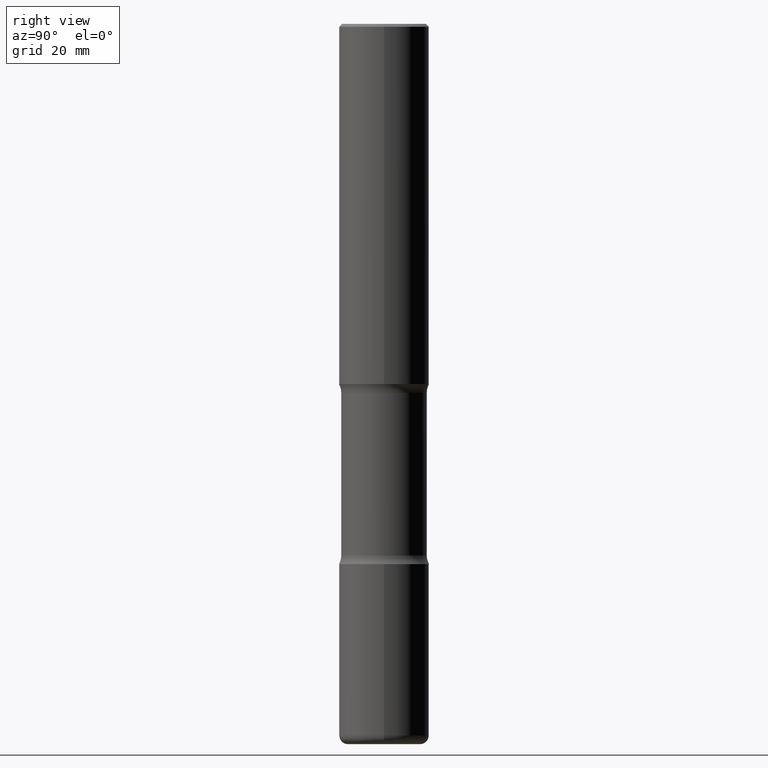
[diagram: clean part render]
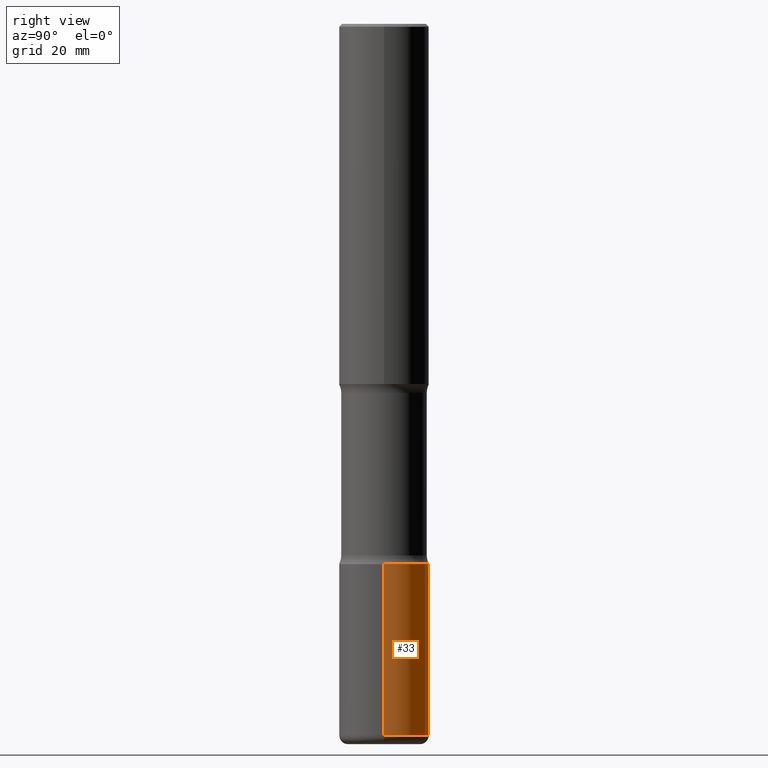
[diagram: same view with one face highlighted and labeled with its STEP entity id]
A machine part, right view. The second image highlights one B-rep face of the part: STEP entity #33.
In plain terms, the highlighted cylindrical surface (partial cylindrical patch) has radius 7.9375 mm, axis along (-0, 0, 1).
Its self-contained STEP definition (entity closure, byte-faithful):
#5 = CARTESIAN_POINT ( 'NONE',  ( 0.000000000000000000, 0.000000000000000000, 0.000000000000000000 ) ) ;
#10 = CYLINDRICAL_SURFACE ( 'NONE', #163, 0.3125000000000002220 ) ;
#17 = CARTESIAN_POINT ( 'NONE',  ( -0.3125000000000002220, 2.220446049250314659E-15, -1.537167215704659073E-29 ) ) ;
#33 = ADVANCED_FACE ( 'NONE', ( #432 ), #10, .T. ) ;
#73 = DIRECTION ( 'NONE',  ( 1.000000000000000000, -6.982962677686265133E-15, 0.000000000000000000 ) ) ;
#82 = LINE ( 'NONE', #17, #335 ) ;
#84 = DIRECTION ( 'NONE',  ( 1.000000000000000000, -6.982962677686262766E-15, 0.000000000000000000 ) ) ;
#100 = CARTESIAN_POINT ( 'NONE',  ( 0.3125000000000000000, -1.943009365066209992E-14, -4.940000000000001279 ) ) ;
#131 = ORIENTED_EDGE ( 'NONE', *, *, #405, .T. ) ;
#147 = VECTOR ( 'NONE', #327, 39.37007874015748143 ) ;
#163 = AXIS2_PLACEMENT_3D ( 'NONE', #5, #338, #292 ) ;
#167 = CARTESIAN_POINT ( 'NONE',  ( 1.208061590255457820E-28, -1.724791781388514630E-14, -4.940000000000001279 ) ) ;
#181 = DIRECTION ( 'NONE',  ( -2.445468806185136877E-29, 3.491481338843145188E-15, 1.000000000000000000 ) ) ;
#189 = LINE ( 'NONE', #406, #147 ) ;
#214 = EDGE_CURVE ( 'NONE', #323, #468, #189, .T. ) ;
#233 = EDGE_CURVE ( 'NONE', #323, #504, #321, .T. ) ;
#289 = CARTESIAN_POINT ( 'NONE',  ( 9.170508023194261117E-29, -1.309305502066179584E-14, -3.749999999999999556 ) ) ;
#292 = DIRECTION ( 'NONE',  ( 1.000000000000000000, -6.982962677686266711E-15, 4.876176775795936353E-29 ) ) ;
#319 = ORIENTED_EDGE ( 'NONE', *, *, #532, .F. ) ;
#321 = CIRCLE ( 'NONE', #397, 0.3125000000000002776 ) ;
#323 = VERTEX_POINT ( 'NONE', #100 ) ;
#327 = DIRECTION ( 'NONE',  ( -2.445468806185136877E-29, 3.491481338843145188E-15, 1.000000000000000000 ) ) ;
#335 = VECTOR ( 'NONE', #181, 39.37007874015748143 ) ;
#338 = DIRECTION ( 'NONE',  ( -2.445468806185136597E-29, 3.491481338843145583E-15, 1.000000000000000000 ) ) ;
#397 = AXIS2_PLACEMENT_3D ( 'NONE', #167, #507, #84 ) ;
#398 = CIRCLE ( 'NONE', #444, 0.3125000000000001665 ) ;
#405 = EDGE_CURVE ( 'NONE', #504, #411, #82, .T. ) ;
#406 = CARTESIAN_POINT ( 'NONE',  ( 0.3125000000000002220, -2.182175836776959925E-15, 1.523805242436231196E-29 ) ) ;
#408 = CARTESIAN_POINT ( 'NONE',  ( 0.3125000000000001665, -1.527523085743875418E-14, -3.749999999999999556 ) ) ;
#411 = VERTEX_POINT ( 'NONE', #437 ) ;
#432 = FACE_OUTER_BOUND ( 'NONE', #453, .T. ) ;
#437 = CARTESIAN_POINT ( 'NONE',  ( -0.3125000000000001665, -1.295004036802315562E-14, -3.749999999999999556 ) ) ;
#439 = ORIENTED_EDGE ( 'NONE', *, *, #233, .T. ) ;
#444 = AXIS2_PLACEMENT_3D ( 'NONE', #289, #467, #73 ) ;
#453 = EDGE_LOOP ( 'NONE', ( #439, #131, #319, #527 ) ) ;
#467 = DIRECTION ( 'NONE',  ( -2.445468806185136597E-29, 3.491481338843145583E-15, 1.000000000000000000 ) ) ;
#468 = VERTEX_POINT ( 'NONE', #408 ) ;
#504 = VERTEX_POINT ( 'NONE', #552 ) ;
#507 = DIRECTION ( 'NONE',  ( -2.445468806185136597E-29, 3.491481338843145583E-15, 1.000000000000000000 ) ) ;
#527 = ORIENTED_EDGE ( 'NONE', *, *, #214, .F. ) ;
#532 = EDGE_CURVE ( 'NONE', #468, #411, #398, .T. ) ;
#552 = CARTESIAN_POINT ( 'NONE',  ( -0.3125000000000000000, -1.502747176463483322E-14, -4.940000000000001279 ) ) ;